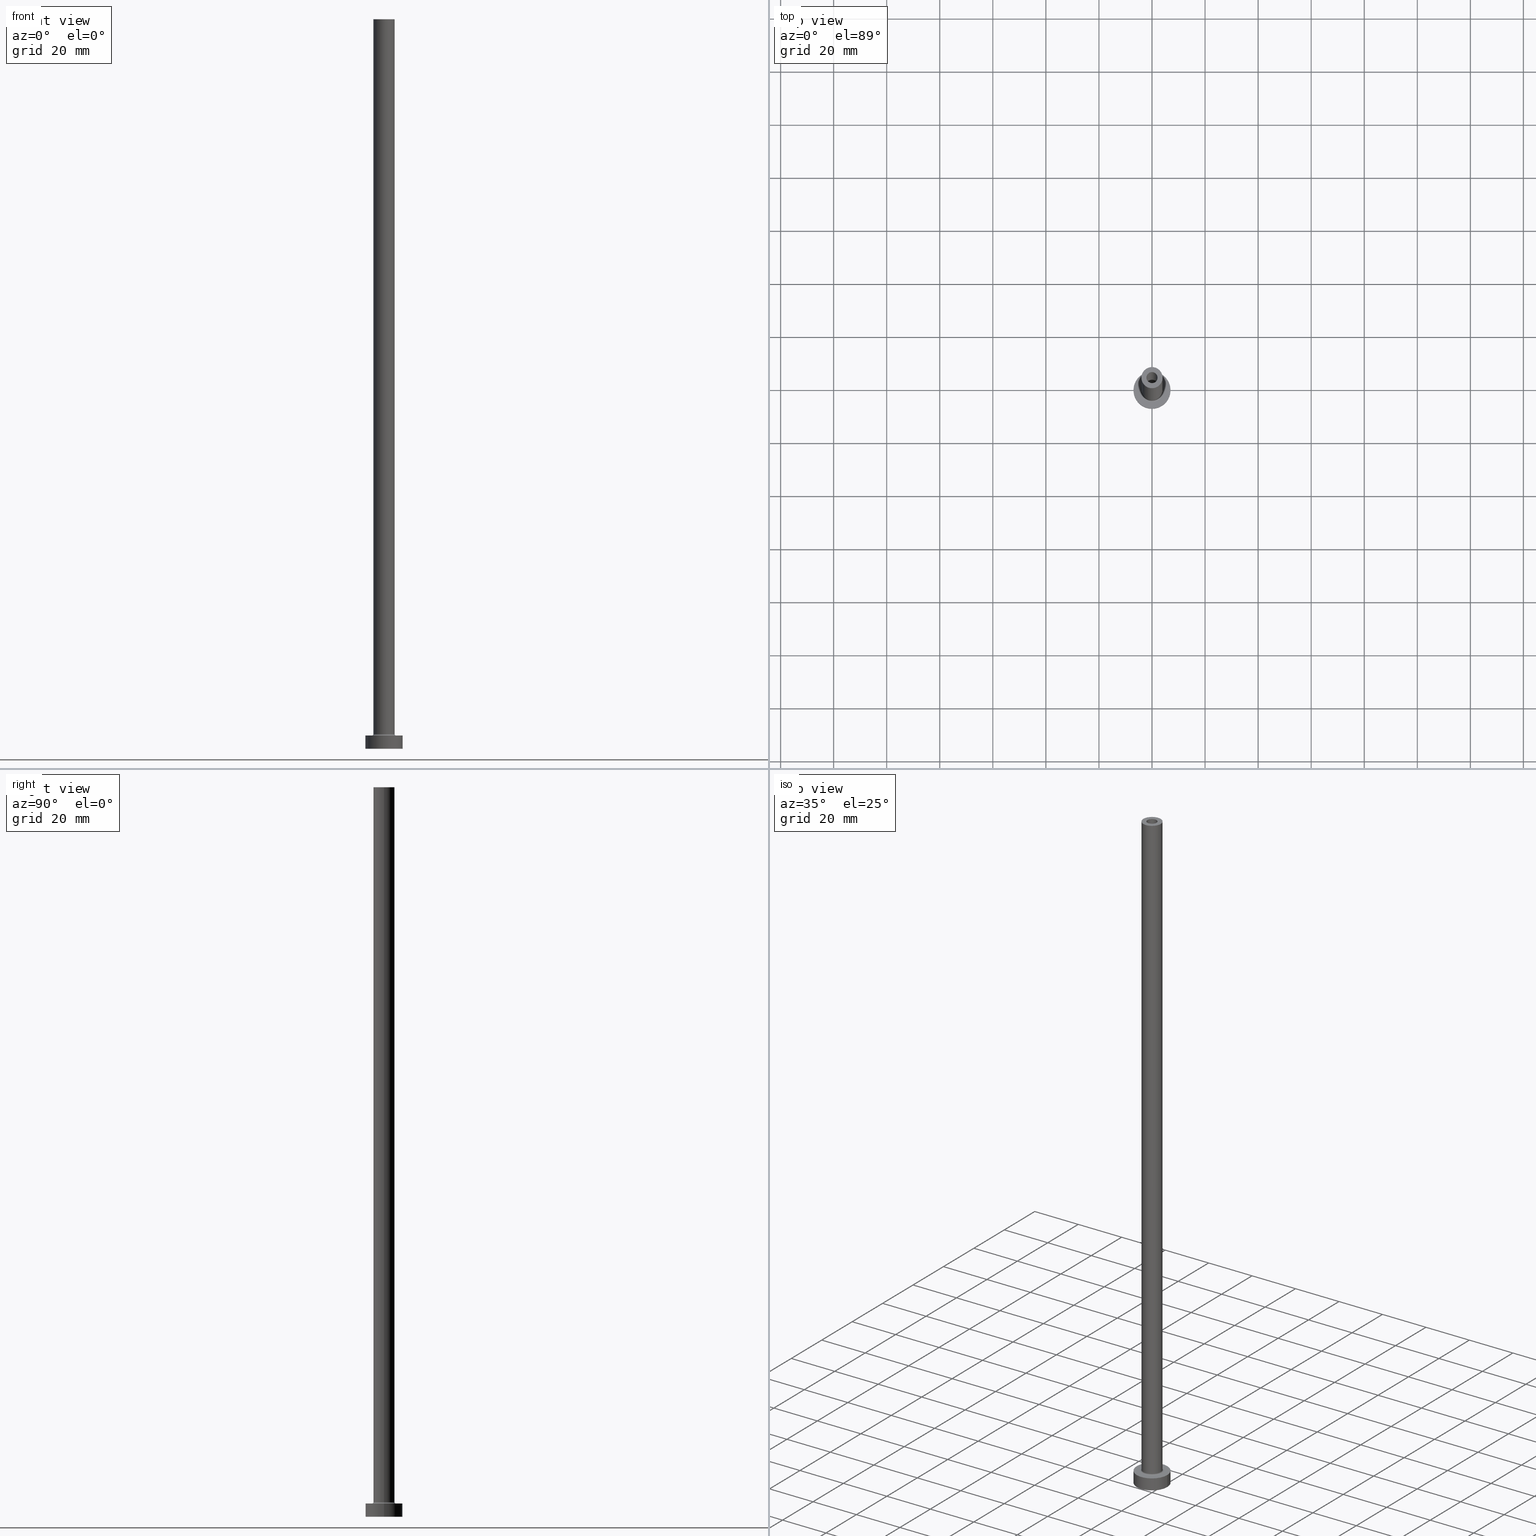
[diagram: canonical four-view strip — front | top / right | iso, engineering-drawing reading convention]
A machine part, canonical four-view strip (front | top / right | iso — engineering-drawing reading convention). The complete STEP part file that produces these views, byte-faithful:
ISO-10303-21;
HEADER;
FILE_DESCRIPTION (( 'STEP AP203' ),
    '1' );
FILE_NAME ('e389.STEP',
    '2023-02-13T17:31:56',
    ( '' ),
    ( '' ),
    'SwSTEP 2.0',
    'SolidWorks 2019',
    '' );
FILE_SCHEMA (( 'CONFIG_CONTROL_DESIGN' ));
ENDSEC;

DATA;
#1 = DIRECTION ( 'NONE',  ( 0.000000000000000000, 0.000000000000000000, -1.000000000000000000 ) ) ;
#2 = EDGE_CURVE ( 'NONE', #114, #81, #444, .T. ) ;
#3 = CARTESIAN_POINT ( 'NONE',  ( 0.000000000000000000, 0.000000000000000000, 275.0000000000000000 ) ) ;
#4 = CARTESIAN_POINT ( 'NONE',  ( 7.000000000000000000, 8.572527594031473190E-16, 5.000000000000000000 ) ) ;
#5 = ORIENTED_EDGE ( 'NONE', *, *, #248, .T. ) ;
#6 = DIRECTION ( 'NONE',  ( -0.000000000000000000, -0.000000000000000000, -1.000000000000000000 ) ) ;
#7 = ORIENTED_EDGE ( 'NONE', *, *, #410, .T. ) ;
#8 = CARTESIAN_POINT ( 'NONE',  ( 0.000000000000000000, 0.000000000000000000, 5.000000000000000000 ) ) ;
#9 = AXIS2_PLACEMENT_3D ( 'NONE', #433, #251, #427 ) ;
#10 = EDGE_LOOP ( 'NONE', ( #296, #5, #190, #402 ) ) ;
#11 = APPROVAL_PERSON_ORGANIZATION ( #455, #343, #355 ) ;
#12 = DIRECTION ( 'NONE',  ( 0.000000000000000000, 0.000000000000000000, -1.000000000000000000 ) ) ;
#13 = CARTESIAN_POINT ( 'NONE',  ( 2.250000000000000000, 2.755455298081544285E-16, 0.000000000000000000 ) ) ;
#14 = APPLICATION_PROTOCOL_DEFINITION ( 'international standard', 'config_control_design', 1994, #82 ) ;
#15 = EDGE_CURVE ( 'NONE', #403, #265, #451, .T. ) ;
#16 = ORIENTED_EDGE ( 'NONE', *, *, #447, .F. ) ;
#17 = VERTEX_POINT ( 'NONE', #105 ) ;
#18 = EDGE_LOOP ( 'NONE', ( #385, #366, #443, #124 ) ) ;
#19 = TOROIDAL_SURFACE ( 'NONE', #168, 4.500000000000000888, 0.5000000000000000000 ) ;
#20 = EDGE_LOOP ( 'NONE', ( #373, #458 ) ) ;
#21 = LOCAL_TIME ( 18, 31, 56.00000000000000000, #135 ) ;
#22 = CARTESIAN_POINT ( 'NONE',  ( 0.000000000000000000, 0.000000000000000000, 5.000000000000000000 ) ) ;
#23 = EDGE_CURVE ( 'NONE', #440, #303, #305, .T. ) ;
#24 = EDGE_LOOP ( 'NONE', ( #198, #16 ) ) ;
#25 = CYLINDRICAL_SURFACE ( 'NONE', #342, 4.000000000000000000 ) ;
#26 = ADVANCED_BREP_SHAPE_REPRESENTATION ( 'e389', ( #235, #185 ), #90 ) ;
#27 = DIRECTION ( 'NONE',  ( -1.000000000000000000, 0.000000000000000000, 0.000000000000000000 ) ) ;
#28 = VECTOR ( 'NONE', #119, 1000.000000000000000 ) ;
#29 = AXIS2_PLACEMENT_3D ( 'NONE', #111, #70, #289 ) ;
#30 = ORIENTED_EDGE ( 'NONE', *, *, #447, .T. ) ;
#31 = DIRECTION ( 'NONE',  ( 1.000000000000000000, 0.000000000000000000, 0.000000000000000000 ) ) ;
#32 = PERSON_AND_ORGANIZATION_ROLE ( 'creator' ) ;
#33 = EDGE_CURVE ( 'NONE', #424, #48, #279, .T. ) ;
#34 = LINE ( 'NONE', #270, #370 ) ;
#35 = PERSON_AND_ORGANIZATION_ROLE ( 'classification_officer' ) ;
#36 = APPLICATION_PROTOCOL_DEFINITION ( 'international standard', 'config_control_design', 1994, #88 ) ;
#37 = SECURITY_CLASSIFICATION_LEVEL ( 'unclassified' ) ;
#38 = AXIS2_PLACEMENT_3D ( 'NONE', #306, #453, #197 ) ;
#39 = AXIS2_PLACEMENT_3D ( 'NONE', #407, #132, #344 ) ;
#40 = CALENDAR_DATE ( 2023, 13, 2 ) ;
#41 = DIRECTION ( 'NONE',  ( 1.000000000000000000, 0.000000000000000000, 0.000000000000000000 ) ) ;
#42 = DIRECTION ( 'NONE',  ( -0.000000000000000000, -0.000000000000000000, -1.000000000000000000 ) ) ;
#43 = ORIENTED_EDGE ( 'NONE', *, *, #422, .F. ) ;
#44 = CARTESIAN_POINT ( 'NONE',  ( 0.000000000000000000, 0.000000000000000000, 236.3639610306789791 ) ) ;
#45 = DIRECTION ( 'NONE',  ( 1.000000000000000000, 0.000000000000000000, 0.000000000000000000 ) ) ;
#46 = DATE_AND_TIME ( #63, #79 ) ;
#47 = TOROIDAL_SURFACE ( 'NONE', #120, 4.500000000000000888, 0.5000000000000000000 ) ;
#48 = VERTEX_POINT ( 'NONE', #73 ) ;
#49 = EDGE_CURVE ( 'NONE', #17, #80, #237, .T. ) ;
#50 = DIRECTION ( 'NONE',  ( 1.000000000000000000, 0.000000000000000000, 0.000000000000000000 ) ) ;
#51 = DIRECTION ( 'NONE',  ( 1.000000000000000000, 0.000000000000000000, 0.000000000000000000 ) ) ;
#52 = ADVANCED_FACE ( 'NONE', ( #64 ), #358, .T. ) ;
#53 = DATE_AND_TIME ( #364, #408 ) ;
#54 = CARTESIAN_POINT ( 'NONE',  ( 0.000000000000000000, 0.000000000000000000, 275.0000000000000000 ) ) ;
#55 = DIRECTION ( 'NONE',  ( 1.000000000000000000, 0.000000000000000000, 0.000000000000000000 ) ) ;
#56 = SECURITY_CLASSIFICATION ( '', '', #37 ) ;
#57 = CARTESIAN_POINT ( 'NONE',  ( 2.100000000000000089, 2.571758278209441464E-16, 275.0000000000000000 ) ) ;
#58 = FACE_OUTER_BOUND ( 'NONE', #115, .T. ) ;
#59 = DIRECTION ( 'NONE',  ( 1.000000000000000000, 0.000000000000000000, 0.000000000000000000 ) ) ;
#60 = DIRECTION ( 'NONE',  ( -1.000000000000000000, 0.000000000000000000, 0.000000000000000000 ) ) ;
#61 = CC_DESIGN_DATE_AND_TIME_ASSIGNMENT ( #46, #133, ( #309 ) ) ;
#62 = DIRECTION ( 'NONE',  ( -0.000000000000000000, -0.000000000000000000, -1.000000000000000000 ) ) ;
#63 = CALENDAR_DATE ( 2023, 13, 2 ) ;
#64 = FACE_OUTER_BOUND ( 'NONE', #227, .T. ) ;
#65 = ADVANCED_FACE ( 'NONE', ( #246 ), #19, .F. ) ;
#66 = DATE_TIME_ROLE ( 'classification_date' ) ;
#67 = DESIGN_CONTEXT ( 'detailed design', #82, 'design' ) ;
#68 = AXIS2_PLACEMENT_3D ( 'NONE', #44, #392, #215 ) ;
#69 = CIRCLE ( 'NONE', #362, 2.100000000000000089 ) ;
#70 = DIRECTION ( 'NONE',  ( 0.000000000000000000, 0.000000000000000000, 1.000000000000000000 ) ) ;
#71 = FACE_BOUND ( 'NONE', #20, .T. ) ;
#72 = PRODUCT_DEFINITION_SHAPE ( 'NONE', 'NONE',  #309 ) ;
#73 = CARTESIAN_POINT ( 'NONE',  ( 4.000000000000000000, 4.898587196589412829E-16, 5.500000000000005329 ) ) ;
#74 = PERSON ( 'NEUR�EN�', 'NEUR�EN�', 'NEUR�EN�', ('NEUR�EN�'), ('NEUR�EN�'), ('NEUR�EN�') ) ;
#75 = CARTESIAN_POINT ( 'NONE',  ( 2.250000000000000000, 2.755455298081544285E-16, 230.0000000000000284 ) ) ;
#76 = LINE ( 'NONE', #4, #260 ) ;
#77 = AXIS2_PLACEMENT_3D ( 'NONE', #286, #284, #217 ) ;
#78 = EDGE_CURVE ( 'NONE', #17, #114, #323, .T. ) ;
#79 = LOCAL_TIME ( 18, 31, 56.00000000000000000, #416 ) ;
#80 = VERTEX_POINT ( 'NONE', #75 ) ;
#81 = VERTEX_POINT ( 'NONE', #13 ) ;
#82 = APPLICATION_CONTEXT ( 'configuration controlled 3d designs of mechanical parts and assemblies' ) ;
#83 = EDGE_LOOP ( 'NONE', ( #413, #346 ) ) ;
#84 = EDGE_CURVE ( 'NONE', #440, #449, #435, .T. ) ;
#85 = CC_DESIGN_APPROVAL ( #144, ( #309 ) ) ;
#86 = FACE_OUTER_BOUND ( 'NONE', #18, .T. ) ;
#87 = DIRECTION ( 'NONE',  ( 1.000000000000000000, 0.000000000000000000, -0.000000000000000000 ) ) ;
#88 = APPLICATION_CONTEXT ( 'configuration controlled 3d designs of mechanical parts and assemblies' ) ;
#89 = AXIS2_PLACEMENT_3D ( 'NONE', #22, #129, #162 ) ;
#90 =( GEOMETRIC_REPRESENTATION_CONTEXT ( 3 ) GLOBAL_UNCERTAINTY_ASSIGNED_CONTEXT ( ( #121 ) ) GLOBAL_UNIT_ASSIGNED_CONTEXT ( ( #170, #174, #97 ) ) REPRESENTATION_CONTEXT ( 'NONE', 'WORKASPACE' ) );
#91 = FACE_OUTER_BOUND ( 'NONE', #163, .T. ) ;
#92 = EDGE_CURVE ( 'NONE', #287, #365, #141, .T. ) ;
#93 = ORIENTED_EDGE ( 'NONE', *, *, #457, .T. ) ;
#94 = CARTESIAN_POINT ( 'NONE',  ( 0.000000000000000000, 0.000000000000000000, 275.0000000000000000 ) ) ;
#95 = AXIS2_PLACEMENT_3D ( 'NONE', #128, #382, #207 ) ;
#96 = APPROVAL_STATUS ( 'not_yet_approved' ) ;
#97 =( NAMED_UNIT ( * ) SI_UNIT ( $, .STERADIAN. ) SOLID_ANGLE_UNIT ( ) );
#98 = ADVANCED_FACE ( 'NONE', ( #223 ), #188, .T. ) ;
#99 = ORIENTED_EDGE ( 'NONE', *, *, #351, .T. ) ;
#100 = APPROVAL_DATE_TIME ( #379, #359 ) ;
#101 = CARTESIAN_POINT ( 'NONE',  ( 0.000000000000000000, 0.000000000000000000, 275.0000000000000000 ) ) ;
#102 = VECTOR ( 'NONE', #62, 1000.000000000000000 ) ;
#103 = CYLINDRICAL_SURFACE ( 'NONE', #68, 2.250000000000000000 ) ;
#104 = AXIS2_PLACEMENT_3D ( 'NONE', #209, #352, #324 ) ;
#105 = CARTESIAN_POINT ( 'NONE',  ( -2.250000000000000000, 0.000000000000000000, 230.0000000000000284 ) ) ;
#106 = DIRECTION ( 'NONE',  ( 1.000000000000000000, 0.000000000000000000, -0.000000000000000000 ) ) ;
#107 = DIRECTION ( 'NONE',  ( 0.000000000000000000, 0.000000000000000000, 1.000000000000000000 ) ) ;
#108 = ORIENTED_EDGE ( 'NONE', *, *, #117, .T. ) ;
#109 = ADVANCED_FACE ( 'NONE', ( #299 ), #146, .F. ) ;
#110 = ORIENTED_EDGE ( 'NONE', *, *, #201, .F. ) ;
#111 = CARTESIAN_POINT ( 'NONE',  ( 0.000000000000000000, 0.000000000000000000, 5.000000000000000000 ) ) ;
#112 = AXIS2_PLACEMENT_3D ( 'NONE', #94, #381, #59 ) ;
#113 = CARTESIAN_POINT ( 'NONE',  ( 0.000000000000000000, 0.000000000000000000, 5.000000000000000000 ) ) ;
#114 = VERTEX_POINT ( 'NONE', #153 ) ;
#115 = EDGE_LOOP ( 'NONE', ( #156, #371, #390, #308 ) ) ;
#116 = DIRECTION ( 'NONE',  ( 0.000000000000000000, 0.000000000000000000, 1.000000000000000000 ) ) ;
#117 = EDGE_CURVE ( 'NONE', #403, #48, #204, .T. ) ;
#118 = DIRECTION ( 'NONE',  ( 0.000000000000000000, 0.000000000000000000, 1.000000000000000000 ) ) ;
#119 = DIRECTION ( 'NONE',  ( 0.000000000000000000, 0.000000000000000000, -1.000000000000000000 ) ) ;
#120 = AXIS2_PLACEMENT_3D ( 'NONE', #297, #118, #50 ) ;
#121 = UNCERTAINTY_MEASURE_WITH_UNIT (LENGTH_MEASURE( 1.000000000000000082E-05 ), #170, 'distance_accuracy_value', 'NONE');
#122 = CYLINDRICAL_SURFACE ( 'NONE', #160, 2.100000000000000089 ) ;
#123 = CARTESIAN_POINT ( 'NONE',  ( -7.000000000000000000, 0.000000000000000000, 5.000000000000000000 ) ) ;
#124 = ORIENTED_EDGE ( 'NONE', *, *, #216, .F. ) ;
#125 = CIRCLE ( 'NONE', #39, 2.100000000000000089 ) ;
#126 = ORIENTED_EDGE ( 'NONE', *, *, #2, .T. ) ;
#127 = CIRCLE ( 'NONE', #152, 2.100000000000000089 ) ;
#128 = CARTESIAN_POINT ( 'NONE',  ( 0.000000000000000000, 0.000000000000000000, 0.000000000000000000 ) ) ;
#129 = DIRECTION ( 'NONE',  ( -0.000000000000000000, -0.000000000000000000, -1.000000000000000000 ) ) ;
#130 = ADVANCED_FACE ( 'NONE', ( #372 ), #202, .F. ) ;
#131 = CARTESIAN_POINT ( 'NONE',  ( -2.100000000000000089, 0.000000000000000000, 230.0000000000000284 ) ) ;
#132 = DIRECTION ( 'NONE',  ( 0.000000000000000000, 0.000000000000000000, 1.000000000000000000 ) ) ;
#133 = DATE_TIME_ROLE ( 'creation_date' ) ;
#134 = VECTOR ( 'NONE', #6, 1000.000000000000000 ) ;
#135 = COORDINATED_UNIVERSAL_TIME_OFFSET ( 1, 0, .AHEAD. ) ;
#136 = EDGE_CURVE ( 'NONE', #187, #265, #293, .T. ) ;
#137 = DIRECTION ( 'NONE',  ( 0.000000000000000000, 0.000000000000000000, 1.000000000000000000 ) ) ;
#138 = CARTESIAN_POINT ( 'NONE',  ( 4.500000000000000888, 0.000000000000000000, 5.000000000000002665 ) ) ;
#139 = CARTESIAN_POINT ( 'NONE',  ( 0.000000000000000000, 0.000000000000000000, 275.0000000000000000 ) ) ;
#140 = APPROVAL_ROLE ( '' ) ;
#141 = CIRCLE ( 'NONE', #395, 7.000000000000000000 ) ;
#142 = DIRECTION ( 'NONE',  ( -0.000000000000000000, -0.000000000000000000, -1.000000000000000000 ) ) ;
#143 = ORIENTED_EDGE ( 'NONE', *, *, #78, .T. ) ;
#144 = APPROVAL ( #261, 'NEUR�EN�' ) ;
#145 = DIRECTION ( 'NONE',  ( 0.000000000000000000, 0.000000000000000000, 1.000000000000000000 ) ) ;
#146 = CYLINDRICAL_SURFACE ( 'NONE', #332, 2.100000000000000089 ) ;
#147 = PERSON_AND_ORGANIZATION ( #74, #354 ) ;
#148 = ORIENTED_EDGE ( 'NONE', *, *, #264, .F. ) ;
#149 = DIRECTION ( 'NONE',  ( -1.000000000000000000, 0.000000000000000000, 0.000000000000000000 ) ) ;
#150 = CC_DESIGN_PERSON_AND_ORGANIZATION_ASSIGNMENT ( #426, #32, ( #460 ) ) ;
#151 = CIRCLE ( 'NONE', #211, 2.250000000000000000 ) ;
#152 = AXIS2_PLACEMENT_3D ( 'NONE', #54, #339, #404 ) ;
#153 = CARTESIAN_POINT ( 'NONE',  ( -2.250000000000000000, 0.000000000000000000, 0.000000000000000000 ) ) ;
#154 = ORIENTED_EDGE ( 'NONE', *, *, #201, .T. ) ;
#155 = EDGE_LOOP ( 'NONE', ( #273, #298, #143, #126 ) ) ;
#156 = ORIENTED_EDGE ( 'NONE', *, *, #457, .F. ) ;
#157 = DIRECTION ( 'NONE',  ( -1.000000000000000000, 0.000000000000000000, 0.000000000000000000 ) ) ;
#158 = ORIENTED_EDGE ( 'NONE', *, *, #429, .F. ) ;
#159 = CIRCLE ( 'NONE', #341, 0.5000000000000004441 ) ;
#160 = AXIS2_PLACEMENT_3D ( 'NONE', #441, #12, #149 ) ;
#161 = ORIENTED_EDGE ( 'NONE', *, *, #216, .T. ) ;
#162 = DIRECTION ( 'NONE',  ( 1.000000000000000000, 0.000000000000000000, 0.000000000000000000 ) ) ;
#163 = EDGE_LOOP ( 'NONE', ( #110, #164, #434, #219 ) ) ;
#164 = ORIENTED_EDGE ( 'NONE', *, *, #92, .F. ) ;
#165 = EDGE_LOOP ( 'NONE', ( #200, #224 ) ) ;
#166 = LINE ( 'NONE', #304, #134 ) ;
#167 = ADVANCED_FACE ( 'NONE', ( #71, #280 ), #245, .F. ) ;
#168 = AXIS2_PLACEMENT_3D ( 'NONE', #238, #380, #206 ) ;
#169 = VERTEX_POINT ( 'NONE', #288 ) ;
#170 =( LENGTH_UNIT ( ) NAMED_UNIT ( * ) SI_UNIT ( .MILLI., .METRE. ) );
#171 = CARTESIAN_POINT ( 'NONE',  ( 0.000000000000000000, 0.000000000000000000, 5.000000000000000000 ) ) ;
#172 = CARTESIAN_POINT ( 'NONE',  ( 7.000000000000000000, 8.572527594031473190E-16, 5.000000000000000000 ) ) ;
#173 = PERSON_AND_ORGANIZATION ( #74, #354 ) ;
#174 =( NAMED_UNIT ( * ) PLANE_ANGLE_UNIT ( ) SI_UNIT ( $, .RADIAN. ) );
#175 = MECHANICAL_CONTEXT ( 'NONE', #88, 'mechanical' ) ;
#176 = CARTESIAN_POINT ( 'NONE',  ( 0.000000000000000000, 0.000000000000000000, 230.0000000000000284 ) ) ;
#177 = AXIS2_PLACEMENT_3D ( 'NONE', #3, #137, #45 ) ;
#178 = AXIS2_PLACEMENT_3D ( 'NONE', #171, #236, #60 ) ;
#179 = PERSON_AND_ORGANIZATION ( #74, #354 ) ;
#180 = CALENDAR_DATE ( 2023, 13, 2 ) ;
#181 = CARTESIAN_POINT ( 'NONE',  ( -7.000000000000000000, 0.000000000000000000, 0.000000000000000000 ) ) ;
#182 = CARTESIAN_POINT ( 'NONE',  ( -4.500000000000000888, 5.510910596163089556E-16, 5.500000000000005329 ) ) ;
#183 = CC_DESIGN_PERSON_AND_ORGANIZATION_ASSIGNMENT ( #179, #330, ( #415 ) ) ;
#184 = CLOSED_SHELL ( 'NONE', ( #239, #130, #258, #347, #98, #367, #281, #167, #52, #445, #65, #228, #232, #109 ) ) ;
#185 = AXIS2_PLACEMENT_3D ( 'NONE', #394, #240, #350 ) ;
#186 = EDGE_CURVE ( 'NONE', #80, #17, #151, .T. ) ;
#187 = VERTEX_POINT ( 'NONE', #138 ) ;
#188 = CYLINDRICAL_SURFACE ( 'NONE', #401, 7.000000000000000000 ) ;
#189 = VERTEX_POINT ( 'NONE', #181 ) ;
#190 = ORIENTED_EDGE ( 'NONE', *, *, #317, .T. ) ;
#191 = DIRECTION ( 'NONE',  ( 0.000000000000000000, 0.000000000000000000, 1.000000000000000000 ) ) ;
#192 = CIRCLE ( 'NONE', #325, 4.500000000000000888 ) ;
#193 = DIRECTION ( 'NONE',  ( 0.000000000000000000, 0.000000000000000000, 1.000000000000000000 ) ) ;
#194 = PLANE ( 'NONE',  #459 ) ;
#195 = CC_DESIGN_DATE_AND_TIME_ASSIGNMENT ( #244, #66, ( #56 ) ) ;
#196 = ORIENTED_EDGE ( 'NONE', *, *, #335, .F. ) ;
#197 = DIRECTION ( 'NONE',  ( -1.000000000000000000, 0.000000000000000000, 0.000000000000000000 ) ) ;
#198 = ORIENTED_EDGE ( 'NONE', *, *, #23, .F. ) ;
#199 = DIRECTION ( 'NONE',  ( -0.000000000000000000, -0.000000000000000000, -1.000000000000000000 ) ) ;
#200 = ORIENTED_EDGE ( 'NONE', *, *, #136, .T. ) ;
#201 = EDGE_CURVE ( 'NONE', #365, #234, #76, .T. ) ;
#202 = CYLINDRICAL_SURFACE ( 'NONE', #38, 2.250000000000000000 ) ;
#203 = DIRECTION ( 'NONE',  ( 1.000000000000000000, 0.000000000000000000, -0.000000000000000000 ) ) ;
#204 = CIRCLE ( 'NONE', #418, 4.000000000000000000 ) ;
#205 = CARTESIAN_POINT ( 'NONE',  ( 0.000000000000000000, 0.000000000000000000, 5.000000000000000000 ) ) ;
#206 = DIRECTION ( 'NONE',  ( 1.000000000000000000, 0.000000000000000000, 0.000000000000000000 ) ) ;
#207 = DIRECTION ( 'NONE',  ( 1.000000000000000000, 0.000000000000000000, 0.000000000000000000 ) ) ;
#208 = EDGE_CURVE ( 'NONE', #169, #424, #360, .T. ) ;
#209 = CARTESIAN_POINT ( 'NONE',  ( 0.000000000000000000, 0.000000000000000000, 5.500000000000005329 ) ) ;
#210 = PERSON_AND_ORGANIZATION ( #74, #354 ) ;
#211 = AXIS2_PLACEMENT_3D ( 'NONE', #363, #250, #41 ) ;
#212 = APPROVAL_PERSON_ORGANIZATION ( #210, #359, #140 ) ;
#213 = COORDINATED_UNIVERSAL_TIME_OFFSET ( 1, 0, .AHEAD. ) ;
#214 = FACE_BOUND ( 'NONE', #24, .T. ) ;
#215 = DIRECTION ( 'NONE',  ( -1.000000000000000000, 0.000000000000000000, 0.000000000000000000 ) ) ;
#216 = EDGE_CURVE ( 'NONE', #48, #187, #159, .T. ) ;
#217 = DIRECTION ( 'NONE',  ( 1.000000000000000000, 0.000000000000000000, 0.000000000000000000 ) ) ;
#218 = DIRECTION ( 'NONE',  ( 0.000000000000000000, 0.000000000000000000, -1.000000000000000000 ) ) ;
#219 = ORIENTED_EDGE ( 'NONE', *, *, #264, .T. ) ;
#220 = AXIS2_PLACEMENT_3D ( 'NONE', #417, #454, #272 ) ;
#221 = ORIENTED_EDGE ( 'NONE', *, *, #15, .F. ) ;
#222 = FACE_OUTER_BOUND ( 'NONE', #155, .T. ) ;
#223 = FACE_OUTER_BOUND ( 'NONE', #271, .T. ) ;
#224 = ORIENTED_EDGE ( 'NONE', *, *, #375, .T. ) ;
#225 = VECTOR ( 'NONE', #292, 1000.000000000000000 ) ;
#226 = AXIS2_PLACEMENT_3D ( 'NONE', #374, #191, #55 ) ;
#227 = EDGE_LOOP ( 'NONE', ( #438, #310, #99, #108 ) ) ;
#228 = ADVANCED_FACE ( 'NONE', ( #222 ), #103, .F. ) ;
#229 = APPROVAL_ROLE ( '' ) ;
#230 = ORIENTED_EDGE ( 'NONE', *, *, #23, .T. ) ;
#231 = CIRCLE ( 'NONE', #220, 7.000000000000000000 ) ;
#232 = ADVANCED_FACE ( 'NONE', ( #430, #357 ), #194, .F. ) ;
#233 = CARTESIAN_POINT ( 'NONE',  ( 2.100000000000000089, 2.571758278209441464E-16, 275.0000000000000000 ) ) ;
#234 = VERTEX_POINT ( 'NONE', #259 ) ;
#235 = MANIFOLD_SOLID_BREP ( 'Odebrat vysunut�m4', #184 ) ;
#236 = DIRECTION ( 'NONE',  ( -0.000000000000000000, -0.000000000000000000, -1.000000000000000000 ) ) ;
#237 = CIRCLE ( 'NONE', #77, 2.250000000000000000 ) ;
#238 = CARTESIAN_POINT ( 'NONE',  ( 0.000000000000000000, 0.000000000000000000, 5.500000000000005329 ) ) ;
#239 = ADVANCED_FACE ( 'NONE', ( #376 ), #122, .F. ) ;
#240 = DIRECTION ( 'NONE',  ( 0.000000000000000000, 0.000000000000000000, 1.000000000000000000 ) ) ;
#241 = CALENDAR_DATE ( 2023, 13, 2 ) ;
#242 = CARTESIAN_POINT ( 'NONE',  ( 0.000000000000000000, 0.000000000000000000, 0.000000000000000000 ) ) ;
#243 = DIRECTION ( 'NONE',  ( 0.000000000000000000, 0.000000000000000000, 1.000000000000000000 ) ) ;
#244 = DATE_AND_TIME ( #40, #314 ) ;
#245 = PLANE ( 'NONE',  #353 ) ;
#246 = FACE_OUTER_BOUND ( 'NONE', #311, .T. ) ;
#247 = AXIS2_PLACEMENT_3D ( 'NONE', #242, #42, #313 ) ;
#248 = EDGE_CURVE ( 'NONE', #80, #81, #328, .T. ) ;
#249 = SHAPE_DEFINITION_REPRESENTATION ( #72, #26 ) ;
#250 = DIRECTION ( 'NONE',  ( 0.000000000000000000, 0.000000000000000000, 1.000000000000000000 ) ) ;
#251 = DIRECTION ( 'NONE',  ( 0.000000000000000000, 0.000000000000000000, 1.000000000000000000 ) ) ;
#252 = COORDINATED_UNIVERSAL_TIME_OFFSET ( 1, 0, .AHEAD. ) ;
#253 = CC_DESIGN_APPROVAL ( #359, ( #460 ) ) ;
#254 = PRODUCT_RELATED_PRODUCT_CATEGORY ( 'detail', '', ( #415 ) ) ;
#255 = ORIENTED_EDGE ( 'NONE', *, *, #375, .F. ) ;
#256 = DIRECTION ( 'NONE',  ( 1.000000000000000000, 0.000000000000000000, 0.000000000000000000 ) ) ;
#257 = CARTESIAN_POINT ( 'NONE',  ( 0.000000000000000000, 0.000000000000000000, 275.0000000000000000 ) ) ;
#258 = ADVANCED_FACE ( 'NONE', ( #86 ), #47, .F. ) ;
#259 = CARTESIAN_POINT ( 'NONE',  ( 7.000000000000000000, 8.572527594031473190E-16, 0.000000000000000000 ) ) ;
#260 = VECTOR ( 'NONE', #142, 1000.000000000000000 ) ;
#261 = APPROVAL_STATUS ( 'not_yet_approved' ) ;
#262 = ORIENTED_EDGE ( 'NONE', *, *, #208, .T. ) ;
#263 = PERSON_AND_ORGANIZATION_ROLE ( 'creator' ) ;
#264 = EDGE_CURVE ( 'NONE', #189, #234, #301, .T. ) ;
#265 = VERTEX_POINT ( 'NONE', #333 ) ;
#266 = CARTESIAN_POINT ( 'NONE',  ( 2.100000000000000089, 2.571758278209441464E-16, 230.0000000000000284 ) ) ;
#267 = AXIS2_PLACEMENT_3D ( 'NONE', #101, #318, #431 ) ;
#268 = LOCAL_TIME ( 18, 31, 56.00000000000000000, #213 ) ;
#269 = ORIENTED_EDGE ( 'NONE', *, *, #393, .T. ) ;
#270 = CARTESIAN_POINT ( 'NONE',  ( -4.000000000000000000, 0.000000000000000000, 275.0000000000000000 ) ) ;
#271 = EDGE_LOOP ( 'NONE', ( #409, #154, #369, #421 ) ) ;
#272 = DIRECTION ( 'NONE',  ( 1.000000000000000000, 0.000000000000000000, 0.000000000000000000 ) ) ;
#273 = ORIENTED_EDGE ( 'NONE', *, *, #248, .F. ) ;
#274 = PLANE ( 'NONE',  #307 ) ;
#275 = CC_DESIGN_PERSON_AND_ORGANIZATION_ASSIGNMENT ( #384, #35, ( #56 ) ) ;
#276 = APPROVAL_STATUS ( 'not_yet_approved' ) ;
#277 = VECTOR ( 'NONE', #345, 1000.000000000000000 ) ;
#278 = CARTESIAN_POINT ( 'NONE',  ( 0.000000000000000000, 0.000000000000000000, 275.0000000000000000 ) ) ;
#279 = LINE ( 'NONE', #423, #102 ) ;
#280 = FACE_OUTER_BOUND ( 'NONE', #448, .T. ) ;
#281 = ADVANCED_FACE ( 'NONE', ( #348, #412 ), #274, .T. ) ;
#282 = APPROVAL_DATE_TIME ( #319, #343 ) ;
#283 = CARTESIAN_POINT ( 'NONE',  ( 0.000000000000000000, 0.000000000000000000, 0.000000000000000000 ) ) ;
#284 = DIRECTION ( 'NONE',  ( 0.000000000000000000, 0.000000000000000000, 1.000000000000000000 ) ) ;
#285 = DIRECTION ( 'NONE',  ( 0.000000000000000000, 0.000000000000000000, 1.000000000000000000 ) ) ;
#286 = CARTESIAN_POINT ( 'NONE',  ( 0.000000000000000000, 0.000000000000000000, 230.0000000000000284 ) ) ;
#287 = VERTEX_POINT ( 'NONE', #123 ) ;
#288 = CARTESIAN_POINT ( 'NONE',  ( -4.000000000000000000, 0.000000000000000000, 275.0000000000000000 ) ) ;
#289 = DIRECTION ( 'NONE',  ( 1.000000000000000000, 0.000000000000000000, 0.000000000000000000 ) ) ;
#290 = DIRECTION ( 'NONE',  ( 0.000000000000000000, -1.000000000000000000, 0.000000000000000000 ) ) ;
#291 = CC_DESIGN_PERSON_AND_ORGANIZATION_ASSIGNMENT ( #173, #420, ( #460 ) ) ;
#292 = DIRECTION ( 'NONE',  ( 0.000000000000000000, 0.000000000000000000, -1.000000000000000000 ) ) ;
#293 = CIRCLE ( 'NONE', #89, 4.500000000000000888 ) ;
#294 = CIRCLE ( 'NONE', #95, 2.250000000000000000 ) ;
#295 = CARTESIAN_POINT ( 'NONE',  ( 0.000000000000000000, 0.000000000000000000, 5.500000000000005329 ) ) ;
#296 = ORIENTED_EDGE ( 'NONE', *, *, #49, .T. ) ;
#297 = CARTESIAN_POINT ( 'NONE',  ( 0.000000000000000000, 0.000000000000000000, 5.500000000000005329 ) ) ;
#298 = ORIENTED_EDGE ( 'NONE', *, *, #186, .T. ) ;
#299 = FACE_OUTER_BOUND ( 'NONE', #378, .T. ) ;
#300 = PERSON_AND_ORGANIZATION ( #74, #354 ) ;
#301 = CIRCLE ( 'NONE', #226, 7.000000000000000000 ) ;
#302 = CARTESIAN_POINT ( 'NONE',  ( 0.000000000000000000, 0.000000000000000000, 5.000000000000000000 ) ) ;
#303 = VERTEX_POINT ( 'NONE', #57 ) ;
#304 = CARTESIAN_POINT ( 'NONE',  ( -7.000000000000000000, 0.000000000000000000, 5.000000000000000000 ) ) ;
#305 = CIRCLE ( 'NONE', #177, 2.100000000000000089 ) ;
#306 = CARTESIAN_POINT ( 'NONE',  ( 0.000000000000000000, 0.000000000000000000, 236.3639610306789791 ) ) ;
#307 = AXIS2_PLACEMENT_3D ( 'NONE', #302, #446, #203 ) ;
#308 = ORIENTED_EDGE ( 'NONE', *, *, #351, .F. ) ;
#309 = PRODUCT_DEFINITION ( 'NEZN�M�', '', #460, #67 ) ;
#310 = ORIENTED_EDGE ( 'NONE', *, *, #208, .F. ) ;
#311 = EDGE_LOOP ( 'NONE', ( #221, #43, #161, #255 ) ) ;
#312 = COORDINATED_UNIVERSAL_TIME_OFFSET ( 1, 0, .AHEAD. ) ;
#313 = DIRECTION ( 'NONE',  ( 1.000000000000000000, 0.000000000000000000, 0.000000000000000000 ) ) ;
#314 = LOCAL_TIME ( 18, 31, 56.00000000000000000, #312 ) ;
#315 = DIRECTION ( 'NONE',  ( 1.000000000000000000, 0.000000000000000000, 0.000000000000000000 ) ) ;
#316 = DIRECTION ( 'NONE',  ( 1.000000000000000000, 0.000000000000000000, -0.000000000000000000 ) ) ;
#317 = EDGE_CURVE ( 'NONE', #81, #114, #294, .T. ) ;
#318 = DIRECTION ( 'NONE',  ( -0.000000000000000000, -0.000000000000000000, -1.000000000000000000 ) ) ;
#319 = DATE_AND_TIME ( #180, #268 ) ;
#320 = CARTESIAN_POINT ( 'NONE',  ( 4.500000000000000888, 0.000000000000000000, 5.500000000000005329 ) ) ;
#321 = DIRECTION ( 'NONE',  ( -1.000000000000000000, 1.224646799147351482E-16, 0.000000000000000000 ) ) ;
#322 = PLANE ( 'NONE',  #428 ) ;
#323 = LINE ( 'NONE', #442, #225 ) ;
#324 = DIRECTION ( 'NONE',  ( 1.000000000000000000, 0.000000000000000000, 0.000000000000000000 ) ) ;
#325 = AXIS2_PLACEMENT_3D ( 'NONE', #205, #199, #31 ) ;
#326 = APPROVAL_DATE_TIME ( #53, #144 ) ;
#327 = CC_DESIGN_PERSON_AND_ORGANIZATION_ASSIGNMENT ( #147, #263, ( #309 ) ) ;
#328 = LINE ( 'NONE', #405, #437 ) ;
#329 = DIRECTION ( 'NONE',  ( -1.000000000000000000, 0.000000000000000000, 0.000000000000000000 ) ) ;
#330 = PERSON_AND_ORGANIZATION_ROLE ( 'design_owner' ) ;
#331 = ORIENTED_EDGE ( 'NONE', *, *, #92, .T. ) ;
#332 = AXIS2_PLACEMENT_3D ( 'NONE', #257, #218, #329 ) ;
#333 = CARTESIAN_POINT ( 'NONE',  ( -4.500000000000000888, 5.510910596163088569E-16, 5.000000000000002665 ) ) ;
#334 = CIRCLE ( 'NONE', #29, 7.000000000000000000 ) ;
#335 = EDGE_CURVE ( 'NONE', #234, #189, #231, .T. ) ;
#336 = ORIENTED_EDGE ( 'NONE', *, *, #377, .F. ) ;
#337 = DIRECTION ( 'NONE',  ( -0.000000000000000000, -0.000000000000000000, -1.000000000000000000 ) ) ;
#338 = CARTESIAN_POINT ( 'NONE',  ( 0.000000000000000000, 0.000000000000000000, 230.0000000000000284 ) ) ;
#339 = DIRECTION ( 'NONE',  ( 0.000000000000000000, 0.000000000000000000, 1.000000000000000000 ) ) ;
#340 = VERTEX_POINT ( 'NONE', #266 ) ;
#341 = AXIS2_PLACEMENT_3D ( 'NONE', #320, #290, #1 ) ;
#342 = AXIS2_PLACEMENT_3D ( 'NONE', #278, #349, #27 ) ;
#343 = APPROVAL ( #276, 'NEUR�EN�' ) ;
#344 = DIRECTION ( 'NONE',  ( 1.000000000000000000, 0.000000000000000000, 0.000000000000000000 ) ) ;
#345 = DIRECTION ( 'NONE',  ( 0.000000000000000000, 0.000000000000000000, -1.000000000000000000 ) ) ;
#346 = ORIENTED_EDGE ( 'NONE', *, *, #186, .F. ) ;
#347 = ADVANCED_FACE ( 'NONE', ( #58 ), #25, .T. ) ;
#348 = FACE_BOUND ( 'NONE', #165, .T. ) ;
#349 = DIRECTION ( 'NONE',  ( -0.000000000000000000, -0.000000000000000000, -1.000000000000000000 ) ) ;
#350 = DIRECTION ( 'NONE',  ( 1.000000000000000000, 0.000000000000000000, 0.000000000000000000 ) ) ;
#351 = EDGE_CURVE ( 'NONE', #169, #403, #34, .T. ) ;
#352 = DIRECTION ( 'NONE',  ( 0.000000000000000000, 0.000000000000000000, 1.000000000000000000 ) ) ;
#353 = AXIS2_PLACEMENT_3D ( 'NONE', #283, #285, #316 ) ;
#354 = ORGANIZATION ( 'NEUR�EN�', 'NEUR�EN�', '' ) ;
#355 = APPROVAL_ROLE ( '' ) ;
#356 = FACE_OUTER_BOUND ( 'NONE', #432, .T. ) ;
#357 = FACE_OUTER_BOUND ( 'NONE', #83, .T. ) ;
#358 = CYLINDRICAL_SURFACE ( 'NONE', #267, 4.000000000000000000 ) ;
#359 = APPROVAL ( #96, 'NEUR�EN�' ) ;
#360 = CIRCLE ( 'NONE', #9, 4.000000000000000000 ) ;
#361 = ORIENTED_EDGE ( 'NONE', *, *, #393, .F. ) ;
#362 = AXIS2_PLACEMENT_3D ( 'NONE', #176, #243, #315 ) ;
#363 = CARTESIAN_POINT ( 'NONE',  ( 0.000000000000000000, 0.000000000000000000, 230.0000000000000284 ) ) ;
#364 = CALENDAR_DATE ( 2023, 13, 2 ) ;
#365 = VERTEX_POINT ( 'NONE', #172 ) ;
#366 = ORIENTED_EDGE ( 'NONE', *, *, #15, .T. ) ;
#367 = ADVANCED_FACE ( 'NONE', ( #91 ), #456, .T. ) ;
#368 = DIRECTION ( 'NONE',  ( 0.000000000000000000, 0.000000000000000000, -1.000000000000000000 ) ) ;
#369 = ORIENTED_EDGE ( 'NONE', *, *, #335, .T. ) ;
#370 = VECTOR ( 'NONE', #414, 1000.000000000000000 ) ;
#371 = ORIENTED_EDGE ( 'NONE', *, *, #33, .T. ) ;
#372 = FACE_OUTER_BOUND ( 'NONE', #10, .T. ) ;
#373 = ORIENTED_EDGE ( 'NONE', *, *, #2, .F. ) ;
#374 = CARTESIAN_POINT ( 'NONE',  ( 0.000000000000000000, 0.000000000000000000, 0.000000000000000000 ) ) ;
#375 = EDGE_CURVE ( 'NONE', #265, #187, #192, .T. ) ;
#376 = FACE_OUTER_BOUND ( 'NONE', #400, .T. ) ;
#377 = EDGE_CURVE ( 'NONE', #340, #449, #125, .T. ) ;
#378 = EDGE_LOOP ( 'NONE', ( #361, #30, #383, #336 ) ) ;
#379 = DATE_AND_TIME ( #241, #21 ) ;
#380 = DIRECTION ( 'NONE',  ( 0.000000000000000000, 0.000000000000000000, 1.000000000000000000 ) ) ;
#381 = DIRECTION ( 'NONE',  ( 0.000000000000000000, 0.000000000000000000, 1.000000000000000000 ) ) ;
#382 = DIRECTION ( 'NONE',  ( -0.000000000000000000, -0.000000000000000000, -1.000000000000000000 ) ) ;
#383 = ORIENTED_EDGE ( 'NONE', *, *, #84, .T. ) ;
#384 = PERSON_AND_ORGANIZATION ( #74, #354 ) ;
#385 = ORIENTED_EDGE ( 'NONE', *, *, #117, .F. ) ;
#386 = CARTESIAN_POINT ( 'NONE',  ( 4.000000000000000000, 4.898587196589412829E-16, 275.0000000000000000 ) ) ;
#387 = AXIS2_PLACEMENT_3D ( 'NONE', #182, #425, #321 ) ;
#388 = CC_DESIGN_APPROVAL ( #343, ( #56 ) ) ;
#389 = CIRCLE ( 'NONE', #112, 4.000000000000000000 ) ;
#390 = ORIENTED_EDGE ( 'NONE', *, *, #422, .T. ) ;
#391 = CARTESIAN_POINT ( 'NONE',  ( -2.100000000000000089, 0.000000000000000000, 275.0000000000000000 ) ) ;
#392 = DIRECTION ( 'NONE',  ( 0.000000000000000000, 0.000000000000000000, -1.000000000000000000 ) ) ;
#393 = EDGE_CURVE ( 'NONE', #303, #340, #450, .T. ) ;
#394 = CARTESIAN_POINT ( 'NONE',  ( 0.000000000000000000, 0.000000000000000000, 0.000000000000000000 ) ) ;
#395 = AXIS2_PLACEMENT_3D ( 'NONE', #113, #107, #256 ) ;
#396 = ORIENTED_EDGE ( 'NONE', *, *, #377, .T. ) ;
#397 = CIRCLE ( 'NONE', #104, 4.000000000000000000 ) ;
#398 = EDGE_CURVE ( 'NONE', #287, #189, #166, .T. ) ;
#399 = ORIENTED_EDGE ( 'NONE', *, *, #429, .T. ) ;
#400 = EDGE_LOOP ( 'NONE', ( #230, #269, #158, #411 ) ) ;
#401 = AXIS2_PLACEMENT_3D ( 'NONE', #8, #337, #157 ) ;
#402 = ORIENTED_EDGE ( 'NONE', *, *, #78, .F. ) ;
#403 = VERTEX_POINT ( 'NONE', #461 ) ;
#404 = DIRECTION ( 'NONE',  ( 1.000000000000000000, 0.000000000000000000, 0.000000000000000000 ) ) ;
#405 = CARTESIAN_POINT ( 'NONE',  ( 2.250000000000000000, 2.755455298081544285E-16, 236.3639610306789791 ) ) ;
#406 = EDGE_LOOP ( 'NONE', ( #399, #396 ) ) ;
#407 = CARTESIAN_POINT ( 'NONE',  ( 0.000000000000000000, 0.000000000000000000, 230.0000000000000284 ) ) ;
#408 = LOCAL_TIME ( 18, 31, 56.00000000000000000, #252 ) ;
#409 = ORIENTED_EDGE ( 'NONE', *, *, #410, .F. ) ;
#410 = EDGE_CURVE ( 'NONE', #365, #287, #334, .T. ) ;
#411 = ORIENTED_EDGE ( 'NONE', *, *, #84, .F. ) ;
#412 = FACE_OUTER_BOUND ( 'NONE', #436, .T. ) ;
#413 = ORIENTED_EDGE ( 'NONE', *, *, #49, .F. ) ;
#414 = DIRECTION ( 'NONE',  ( -0.000000000000000000, -0.000000000000000000, -1.000000000000000000 ) ) ;
#415 = PRODUCT ( 'e389', 'e389', '', ( #175 ) ) ;
#416 = COORDINATED_UNIVERSAL_TIME_OFFSET ( 1, 0, .AHEAD. ) ;
#417 = CARTESIAN_POINT ( 'NONE',  ( 0.000000000000000000, 0.000000000000000000, 0.000000000000000000 ) ) ;
#418 = AXIS2_PLACEMENT_3D ( 'NONE', #295, #116, #51 ) ;
#419 = APPROVAL_PERSON_ORGANIZATION ( #300, #144, #229 ) ;
#420 = PERSON_AND_ORGANIZATION_ROLE ( 'design_supplier' ) ;
#421 = ORIENTED_EDGE ( 'NONE', *, *, #398, .F. ) ;
#422 = EDGE_CURVE ( 'NONE', #48, #403, #397, .T. ) ;
#423 = CARTESIAN_POINT ( 'NONE',  ( 4.000000000000000000, 4.898587196589412829E-16, 275.0000000000000000 ) ) ;
#424 = VERTEX_POINT ( 'NONE', #386 ) ;
#425 = DIRECTION ( 'NONE',  ( 1.224646799147353207E-16, 1.000000000000000000, -0.000000000000000000 ) ) ;
#426 = PERSON_AND_ORGANIZATION ( #74, #354 ) ;
#427 = DIRECTION ( 'NONE',  ( 1.000000000000000000, 0.000000000000000000, 0.000000000000000000 ) ) ;
#428 = AXIS2_PLACEMENT_3D ( 'NONE', #139, #145, #106 ) ;
#429 = EDGE_CURVE ( 'NONE', #449, #340, #69, .T. ) ;
#430 = FACE_BOUND ( 'NONE', #406, .T. ) ;
#431 = DIRECTION ( 'NONE',  ( -1.000000000000000000, 0.000000000000000000, 0.000000000000000000 ) ) ;
#432 = EDGE_LOOP ( 'NONE', ( #262, #93 ) ) ;
#433 = CARTESIAN_POINT ( 'NONE',  ( 0.000000000000000000, 0.000000000000000000, 275.0000000000000000 ) ) ;
#434 = ORIENTED_EDGE ( 'NONE', *, *, #398, .T. ) ;
#435 = LINE ( 'NONE', #439, #28 ) ;
#436 = EDGE_LOOP ( 'NONE', ( #331, #7 ) ) ;
#437 = VECTOR ( 'NONE', #368, 1000.000000000000000 ) ;
#438 = ORIENTED_EDGE ( 'NONE', *, *, #33, .F. ) ;
#439 = CARTESIAN_POINT ( 'NONE',  ( -2.100000000000000089, 0.000000000000000000, 275.0000000000000000 ) ) ;
#440 = VERTEX_POINT ( 'NONE', #391 ) ;
#441 = CARTESIAN_POINT ( 'NONE',  ( 0.000000000000000000, 0.000000000000000000, 275.0000000000000000 ) ) ;
#442 = CARTESIAN_POINT ( 'NONE',  ( -2.250000000000000000, 0.000000000000000000, 236.3639610306789791 ) ) ;
#443 = ORIENTED_EDGE ( 'NONE', *, *, #136, .F. ) ;
#444 = CIRCLE ( 'NONE', #247, 2.250000000000000000 ) ;
#445 = ADVANCED_FACE ( 'NONE', ( #214, #356 ), #322, .T. ) ;
#446 = DIRECTION ( 'NONE',  ( 0.000000000000000000, 0.000000000000000000, 1.000000000000000000 ) ) ;
#447 = EDGE_CURVE ( 'NONE', #303, #440, #127, .T. ) ;
#448 = EDGE_LOOP ( 'NONE', ( #148, #196 ) ) ;
#449 = VERTEX_POINT ( 'NONE', #131 ) ;
#450 = LINE ( 'NONE', #233, #277 ) ;
#451 = CIRCLE ( 'NONE', #387, 0.5000000000000004441 ) ;
#452 = CC_DESIGN_SECURITY_CLASSIFICATION ( #56, ( #460 ) ) ;
#453 = DIRECTION ( 'NONE',  ( 0.000000000000000000, 0.000000000000000000, -1.000000000000000000 ) ) ;
#454 = DIRECTION ( 'NONE',  ( 0.000000000000000000, 0.000000000000000000, 1.000000000000000000 ) ) ;
#455 = PERSON_AND_ORGANIZATION ( #74, #354 ) ;
#456 = CYLINDRICAL_SURFACE ( 'NONE', #178, 7.000000000000000000 ) ;
#457 = EDGE_CURVE ( 'NONE', #424, #169, #389, .T. ) ;
#458 = ORIENTED_EDGE ( 'NONE', *, *, #317, .F. ) ;
#459 = AXIS2_PLACEMENT_3D ( 'NONE', #338, #193, #87 ) ;
#460 = PRODUCT_DEFINITION_FORMATION_WITH_SPECIFIED_SOURCE ( 'LIBOVOLN�', '', #415, .NOT_KNOWN. ) ;
#461 = CARTESIAN_POINT ( 'NONE',  ( -4.000000000000000000, 0.000000000000000000, 5.500000000000005329 ) ) ;
ENDSEC;
END-ISO-10303-21;
